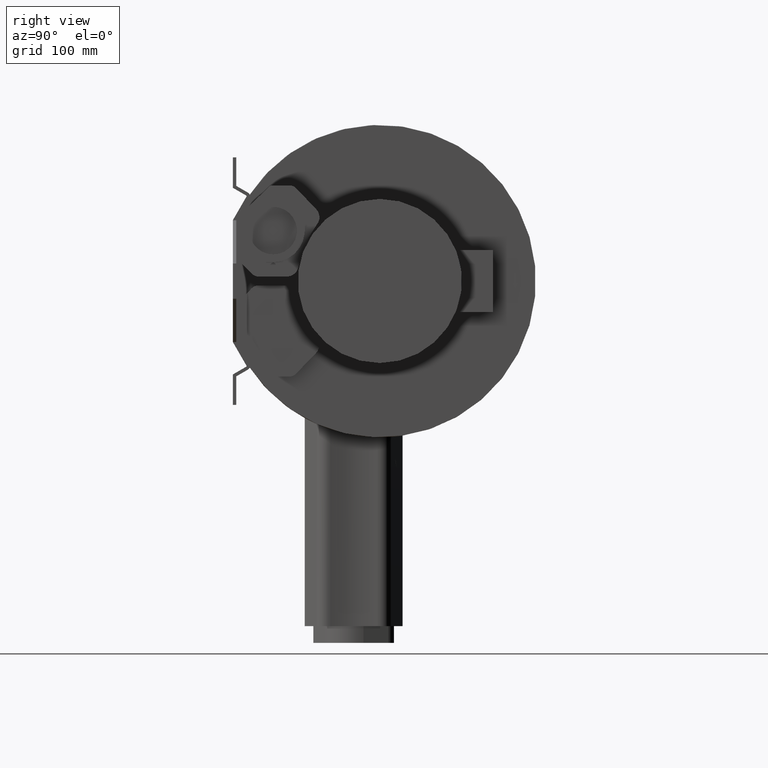
[diagram: clean part render]
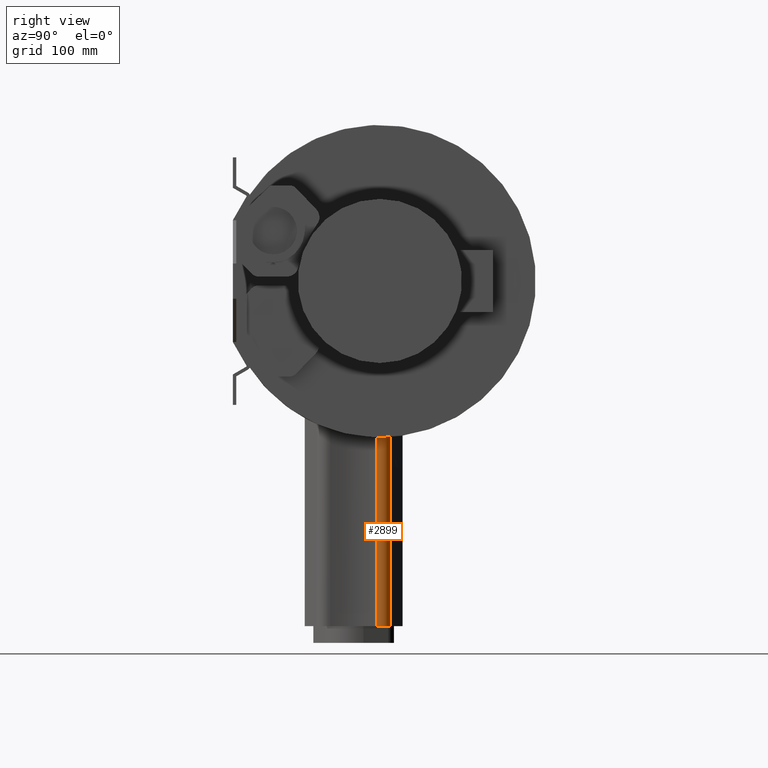
[diagram: same view with one face highlighted and labeled with its STEP entity id]
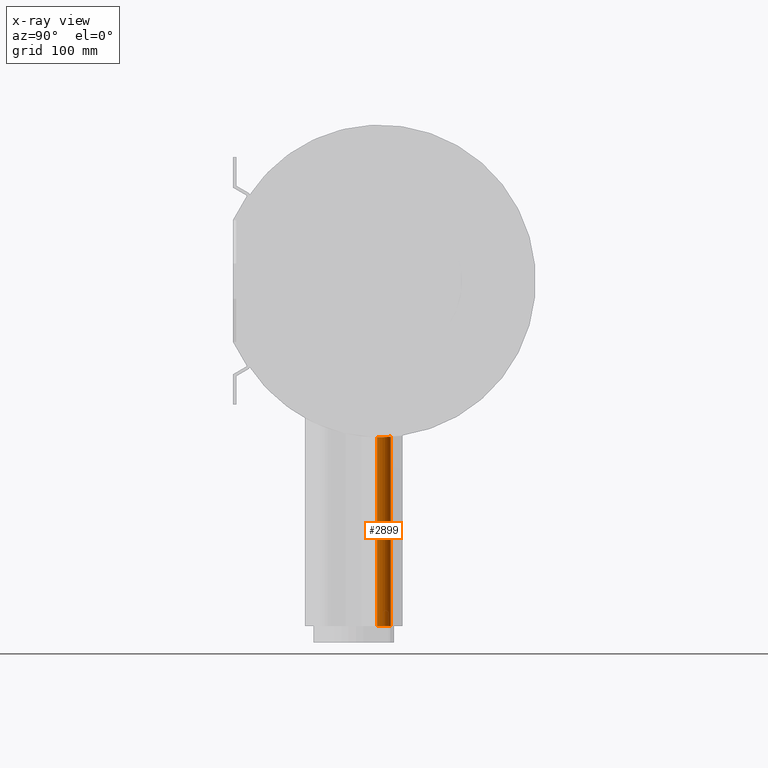
[diagram: x-ray of the same camera — body ghosted, the highlighted face saturated]
A machine part, right view. The second image highlights one B-rep face of the part: STEP entity #2899.
The next image is the same camera in x-ray: the body ghosted, the highlighted face saturated — about 0% of this face is hidden behind the body in this view.
In plain terms, the highlighted cylindrical surface (edge-blend (fillet) strip) has radius 14 mm, axis along (0, 0, -1).
Its self-contained STEP definition (entity closure, byte-faithful):
#1677=CARTESIAN_POINT('',(99.970335128895087,-3.148198472049644,-185.97335520547179));
#1678=VERTEX_POINT('',#1677);
#1692=CARTESIAN_POINT('',(91.868629886375118,13.174333981934776,-185.53284594414123));
#1693=VERTEX_POINT('',#1692);
#1694=CARTESIAN_POINT('',(99.970335128895073,-3.148198472049641,-185.97335520547182));
#1695=CARTESIAN_POINT('',(100.2603612042121,-2.002438768175901,-185.99275088150878));
#1696=CARTESIAN_POINT('',(100.3983940875253,-0.833273185803679,-186.00150877596411));
#1697=CARTESIAN_POINT('',(100.39839408752529,2.045929585363634,-185.99706201173592));
#1698=CARTESIAN_POINT('',(100.04677611540333,3.921315924316607,-185.96666410785059));
#1699=CARTESIAN_POINT('',(98.617769064614805,7.370452145322646,-185.86192001911175));
#1700=CARTESIAN_POINT('',(97.540418227995104,8.944260742939358,-185.78899035988945));
#1701=CARTESIAN_POINT('',(95.082072947257785,11.402548696136442,-185.65415209098194));
#1702=CARTESIAN_POINT('',(93.549677645508055,12.460771543337273,-185.58351465369077));
#1703=CARTESIAN_POINT('',(91.868629886375118,13.174333981934794,-185.53284594414123));
#1704=B_SPLINE_CURVE_WITH_KNOTS('',3,(#1694,#1695,#1696,#1697,#1698,#1699,#1700,#1701,#1702,#1703),.UNSPECIFIED.,.F.,.U.,(4,2,2,2,4),(5.994694619596224,6.330856786341247,6.858456481111809,7.38605617588237,7.902216045620198),.UNSPECIFIED.);
#1705=EDGE_CURVE('',#1678,#1693,#1704,.T.);
#2792=CARTESIAN_POINT('',(91.868629886375118,13.174333981934776,-411.0));
#2793=VERTEX_POINT('',#2792);
#2794=CARTESIAN_POINT('',(91.868629886375118,13.174333981934776,-185.53284594414123));
#2795=DIRECTION('',(0.0,0.0,-1.0));
#2796=VECTOR('',#2795,225.46715405585877);
#2797=LINE('',#2794,#2796);
#2798=EDGE_CURVE('',#1693,#2793,#2797,.T.);
#2875=CARTESIAN_POINT('',(86.39839408752529,0.287266033600624,0.0));
#2876=DIRECTION('',(0.0,0.0,-1.0));
#2877=DIRECTION('',(0.969424360097841,-0.245390321832162,0.0));
#2878=AXIS2_PLACEMENT_3D('',#2875,#2876,#2877);
#2879=CYLINDRICAL_SURFACE('',#2878,14.000000000000002);
#2880=ORIENTED_EDGE('',*,*,#1705,.F.);
#2881=CARTESIAN_POINT('',(99.970335128895087,-3.148198472049644,-411.0));
#2882=VERTEX_POINT('',#2881);
#2883=CARTESIAN_POINT('',(99.970335128895087,-3.148198472049644,-185.97335520547179));
#2884=DIRECTION('',(0.0,0.0,-1.0));
#2885=VECTOR('',#2884,225.02664479452821);
#2886=LINE('',#2883,#2885);
#2887=EDGE_CURVE('',#1678,#2882,#2886,.T.);
#2888=ORIENTED_EDGE('',*,*,#2887,.T.);
#2889=CARTESIAN_POINT('',(86.39839408752529,0.287266033600624,-411.0));
#2890=DIRECTION('',(0.0,0.0,1.0));
#2891=DIRECTION('',(0.969424360097841,-0.245390321832162,0.0));
#2892=AXIS2_PLACEMENT_3D('',#2889,#2890,#2891);
#2893=CIRCLE('',#2892,14.0);
#2894=EDGE_CURVE('',#2882,#2793,#2893,.T.);
#2895=ORIENTED_EDGE('',*,*,#2894,.T.);
#2896=ORIENTED_EDGE('',*,*,#2798,.F.);
#2897=EDGE_LOOP('',(#2880,#2888,#2895,#2896));
#2898=FACE_OUTER_BOUND('',#2897,.T.);
#2899=ADVANCED_FACE('',(#2898),#2879,.T.);